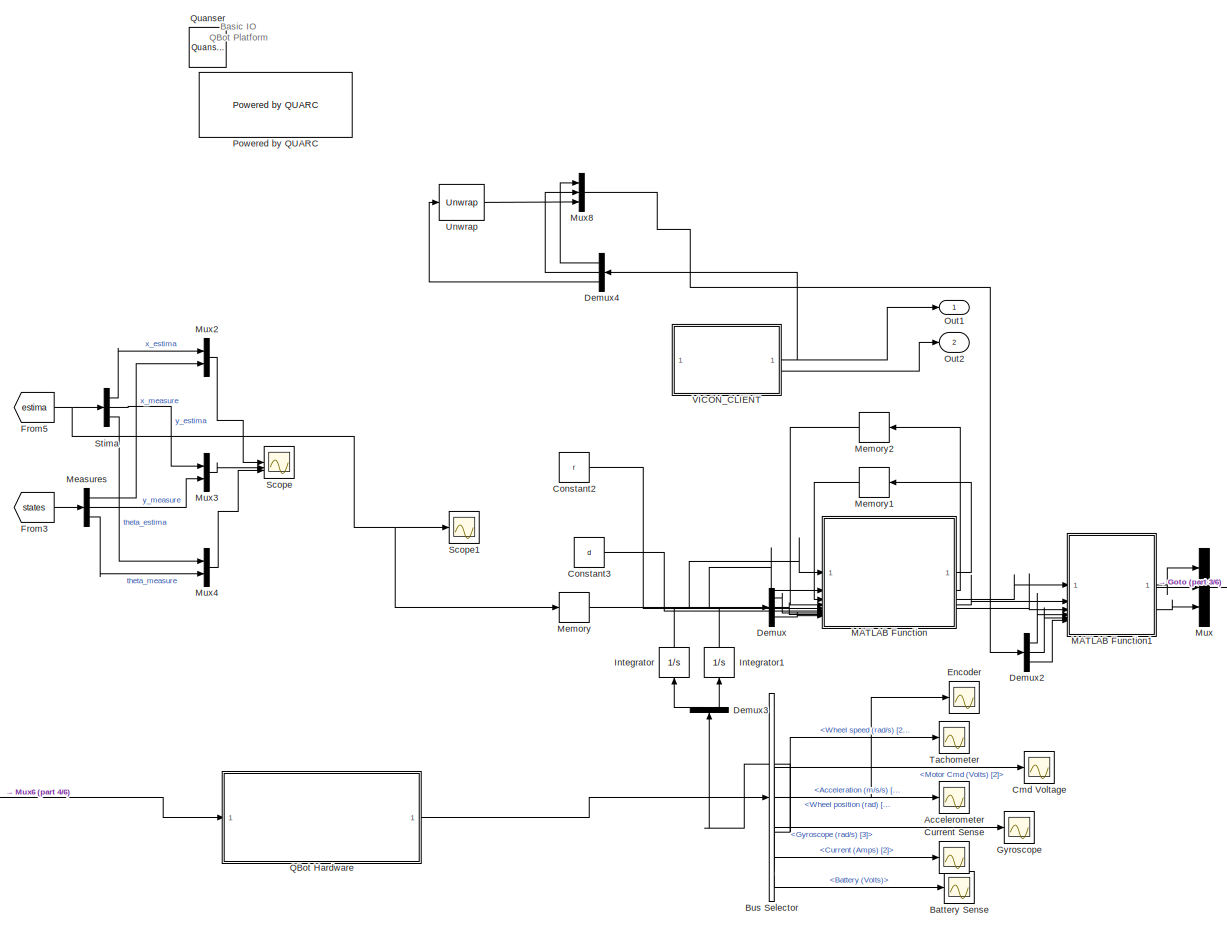
[diagram: root canvas - part 1/6, right side, full height]
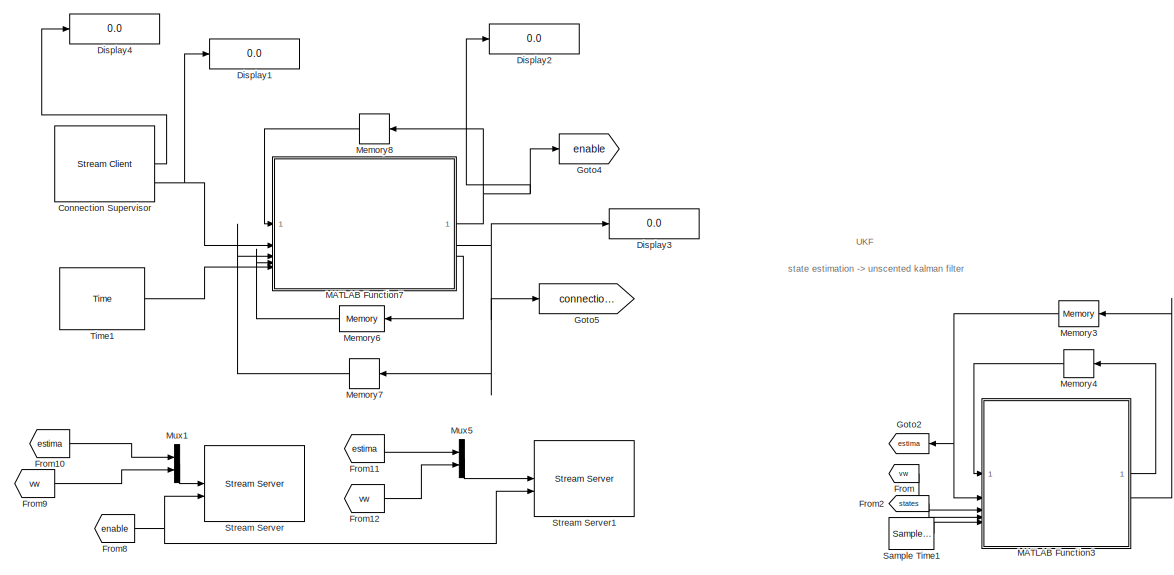
[diagram: root canvas - part 2/6, top center region]
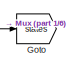
[diagram: root canvas - part 3/6, middle right region]
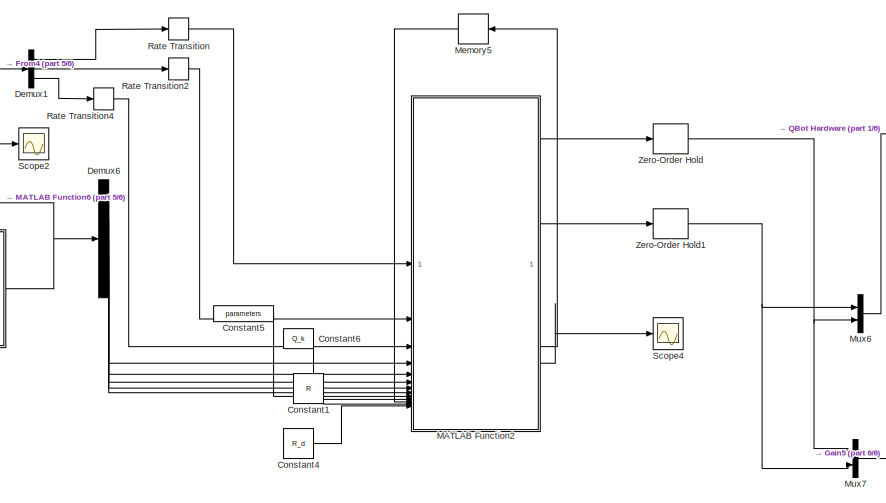
[diagram: root canvas - part 4/6, bottom center region]
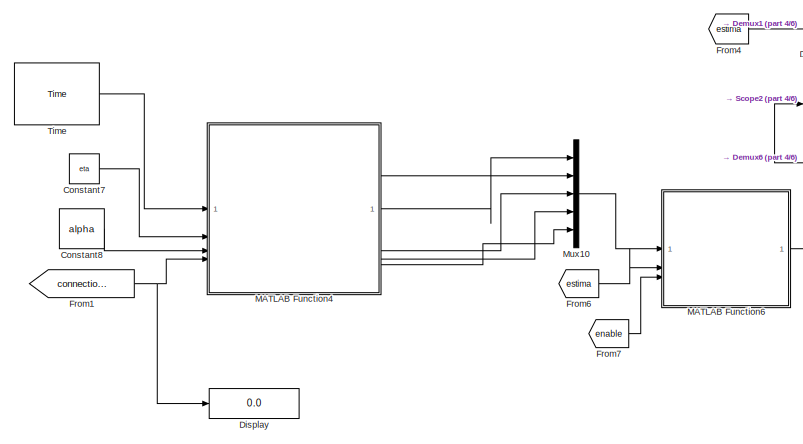
[diagram: root canvas - part 5/6, bottom left region]
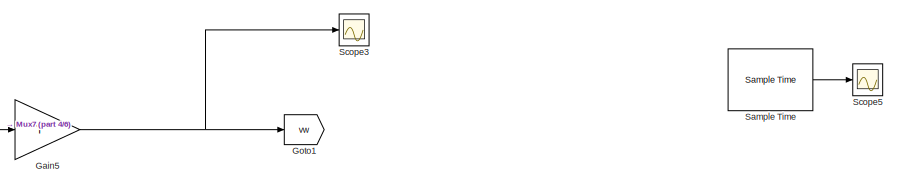
[diagram: root canvas - part 6/6, bottom center region]
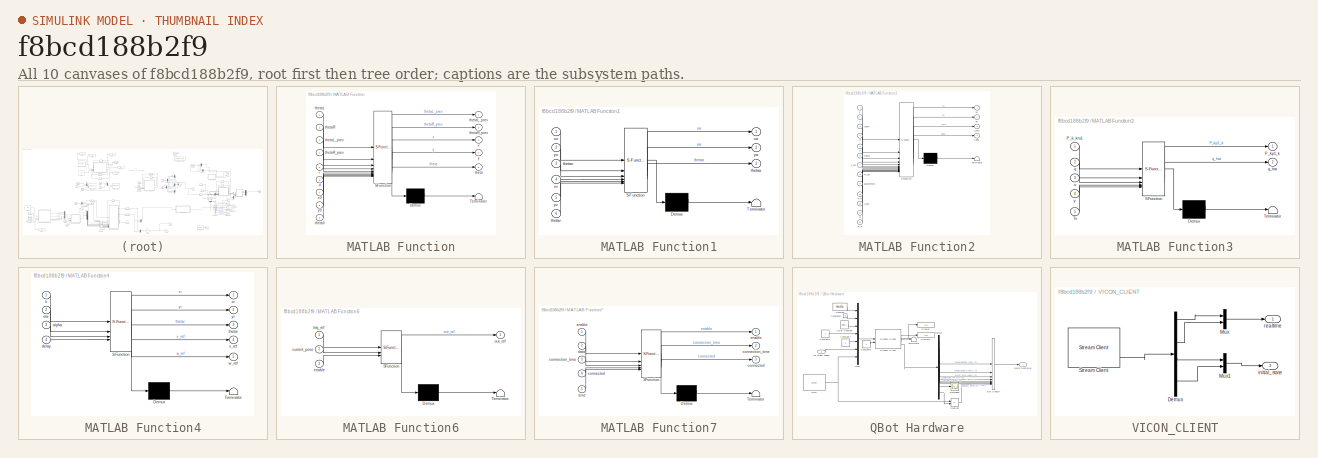
[diagram: thumbnail index - all 10 canvases of the model, root first then tree order]
MODEL slx_f8bcd188b2f9
KIND model
CONFIG AbsTol = auto
CONFIG EnableMultiTasking = on
CONFIG FixedStep = 1/30
CONFIG MaxStep = auto
CONFIG MinStep = auto
CONFIG RelTol = 1e-3
CONFIG SampleTimeConstraint = Unconstrained
CONFIG SolverName = ode1
CONFIG StartTime = 0.0
CONFIG StopTime = inf
WORKSPACE source: mxarray member
WORKSPACE Sig: Simulink.Signal (value not decoded)
WORKSPACE downCamStepSize: Simulink.Parameter (value not decoded)
WORKSPACE lidarStepSize: Simulink.Parameter (value not decoded)
WORKSPACE mainStepSize: Simulink.Parameter (value not decoded)
WORKSPACE mode: Simulink.Parameter (value not decoded)
WORKSPACE realSenseStepSize: Simulink.Parameter (value not decoded)
BLOCK [Scope] Accelerometer
  Floating = off
  NameLocation = right
  NumInputPorts = 1
  ScopeSpecificationString = Simulink.scopes.TimeScopeBlockCfg('CurrentConfiguration', extmgr.ConfigurationSet(extmgr.Configuration('Core','General UI',true),extmgr.Configuration('Core','Source UI',true),extmgr.Configuration('Sources','WiredSimulink',true,'DataLoggingVariableName','ScopeData5'),extmgr.Configuration('Visuals','Time Domain',true,'SerializedDisplays',{struct('MinYLimReal','-1.32758','MaxYLimReal','11.23','YLabel...<+1468ch>
BLOCK [Scope] Battery Sense
  Floating = off
  NameLocation = right
  NumInputPorts = 1
  ScopeSpecificationString = Simulink.scopes.TimeScopeBlockCfg('CurrentConfiguration', extmgr.ConfigurationSet(extmgr.Configuration('Core','General UI',true),extmgr.Configuration('Core','Source UI',true),extmgr.Configuration('Sources','WiredSimulink',true,'DataLoggingVariableName','ScopeData8'),extmgr.Configuration('Visuals','Time Domain',true,'SerializedDisplays',{struct('MinYLimReal','12.81161','MaxYLimReal','12.96349','YLa...<+1408ch>
BLOCK [BusSelector] Bus Selector
  OutputSignals = Wheel position (rad) [2],Wheel speed (rad/s) [2],Motor Cmd (Volts) [2],Acceleration (m/s/s) [3],Gyroscope (rad/s) [3],Current (Amps) [2],Battery (Volts)
BLOCK [Scope] Cmd Voltage
  Floating = off
  NameLocation = right
  NumInputPorts = 1
  ScopeSpecificationString = Simulink.scopes.TimeScopeBlockCfg('CurrentConfiguration', extmgr.ConfigurationSet(extmgr.Configuration('Core','General UI',true),extmgr.Configuration('Core','Source UI',true),extmgr.Configuration('Sources','WiredSimulink',true,'DataLoggingVariableName','ScopeData4'),extmgr.Configuration('Visuals','Time Domain',true,'SerializedDisplays',{struct('MinYLimReal','-1.00000','MaxYLimReal','1.00000','YLab...<+1441ch>
BLOCK [Reference] Connection Supervisor  REF=quarc_library/Communications/Basic/Stream Client
  AttributesFormatString = "tcpip://192.168.0.5:18012"
  SourceBlock = quarc_library/Communications/Basic/Stream Client
  SourceProductName = QUARC Targets
  SourceType = Stream Client
BLOCK [Constant] Constant1
  Value = R
BLOCK [Constant] Constant2
  Value = r
BLOCK [Constant] Constant3
  Value = d
BLOCK [Constant] Constant4
  Value = R_d
BLOCK [Constant] Constant5
  NameLocation = top
  Value = parameters
BLOCK [Constant] Constant6
  NameLocation = top
  Value = Q_k
BLOCK [Constant] Constant7
  Value = eta
BLOCK [Constant] Constant8
  Value = alpha
BLOCK [Scope] Current Sense
  Floating = off
  NameLocation = right
  NumInputPorts = 1
  ScopeSpecificationString = Simulink.scopes.TimeScopeBlockCfg('CurrentConfiguration', extmgr.ConfigurationSet(extmgr.Configuration('Core','General UI',true),extmgr.Configuration('Core','Source UI',true),extmgr.Configuration('Sources','WiredSimulink',true,'DataLoggingVariableName','ScopeData7'),extmgr.Configuration('Visuals','Time Domain',true,'SerializedDisplays',{struct('MinYLimReal','-0.05029','MaxYLimReal','0.45265','YLab...<+1434ch>
BLOCK [Demux] Demux
  Outputs = 3
BLOCK [Demux] Demux1
  Outputs = 3
BLOCK [Demux] Demux2
  Outputs = 3
BLOCK [Demux] Demux3
  NameLocation = right
  Outputs = 2
BLOCK [Demux] Demux4
  NameLocation = top
  Outputs = 3
BLOCK [Demux] Demux6
  Outputs = 5
BLOCK [Display] Display
  Decimation = 1
BLOCK [Display] Display1
  Decimation = 1
BLOCK [Display] Display2
  Decimation = 1
BLOCK [Display] Display3
  Decimation = 1
BLOCK [Display] Display4
  Decimation = 1
BLOCK [Scope] Encoder
  Floating = off
  NameLocation = right
  NumInputPorts = 1
  ScopeSpecificationString = Simulink.scopes.TimeScopeBlockCfg('CurrentConfiguration', extmgr.ConfigurationSet(extmgr.Configuration('Core','General UI',true),extmgr.Configuration('Core','Source UI',true),extmgr.Configuration('Sources','WiredSimulink',true,'DataLoggingVariableName','ScopeData2'),extmgr.Configuration('Visuals','Time Domain',true,'SerializedDisplays',{struct('MinYLimReal','0.28099','MaxYLimReal','183.6586','YLab...<+1499ch>
BLOCK [From] From
  GotoTag = vw
BLOCK [From] From1
  GotoTag = connection_time
BLOCK [From] From10
  GotoTag = estima
BLOCK [From] From11
  GotoTag = estima
BLOCK [From] From12
  GotoTag = vw
BLOCK [From] From2
  GotoTag = states
BLOCK [From] From3
  GotoTag = states
BLOCK [From] From4
  GotoTag = estima
  NameLocation = top
BLOCK [From] From5
  GotoTag = estima
  NameLocation = top
BLOCK [From] From6
  GotoTag = estima
BLOCK [From] From7
  GotoTag = enable
BLOCK [From] From8
  GotoTag = enable
BLOCK [From] From9
  GotoTag = vw
BLOCK [Gain] Gain5
  Gain = T
  Multiplication = Matrix(K*u)
BLOCK [Goto] Goto
  GotoTag = states
BLOCK [Goto] Goto1
  GotoTag = vw
BLOCK [Goto] Goto2
  GotoTag = estima
  NameLocation = top
BLOCK [Goto] Goto4
  GotoTag = enable
BLOCK [Goto] Goto5
  GotoTag = connection_time
BLOCK [Scope] Gyroscope
  Floating = off
  NameLocation = right
  NumInputPorts = 1
  ScopeSpecificationString = Simulink.scopes.TimeScopeBlockCfg('CurrentConfiguration', extmgr.ConfigurationSet(extmgr.Configuration('Core','General UI',true),extmgr.Configuration('Core','Source UI',true),extmgr.Configuration('Sources','WiredSimulink',true,'DataLoggingVariableName','ScopeData6'),extmgr.Configuration('Visuals','Time Domain',true,'SerializedDisplays',{struct('MinYLimReal','-0.40322','MaxYLimReal','1.99912','YLab...<+1468ch>
BLOCK [Integrator] Integrator
  NameLocation = right
BLOCK [Integrator] Integrator1
  NameLocation = right
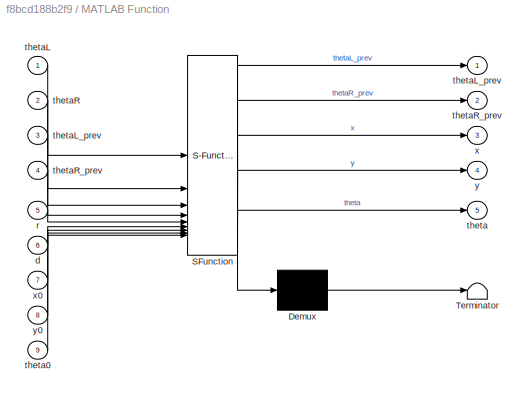
BLOCK [SubSystem] MATLAB Function
  ErrorFcn = Stateflow.Translate.translate
  PermitHierarchicalResolution = ExplicitOnly
  SFBlockType = MATLAB Function
  TreatAsAtomicUnit = on
BLOCK [Demux] MATLAB Function/ Demux 
  Outputs = 1
BLOCK [S-Function] MATLAB Function/ SFunction 
  EnableBusSupport = on
  FunctionName = sf_sfun
  PortCounts = [9 6]
  SFcnIsStateOwnerBlock = off
  SFunctionDeploymentMode = off
  Tag = Stateflow S-Function 2
BLOCK [Terminator] MATLAB Function/ Terminator 
BLOCK [Inport] MATLAB Function/d
  Port = 6
BLOCK [Inport] MATLAB Function/r
  Port = 5
BLOCK [Outport] MATLAB Function/theta
  Port = 5
BLOCK [Inport] MATLAB Function/theta0
  Port = 9
BLOCK [Inport] MATLAB Function/thetaL
BLOCK [Outport] MATLAB Function/thetaL_prev
BLOCK [Inport] MATLAB Function/thetaL_prev 
  Port = 3
BLOCK [Inport] MATLAB Function/thetaR
  Port = 2
BLOCK [Outport] MATLAB Function/thetaR_prev
  Port = 2
BLOCK [Inport] MATLAB Function/thetaR_prev 
  Port = 4
BLOCK [Outport] MATLAB Function/x
  Port = 3
BLOCK [Inport] MATLAB Function/x0
  Port = 7
BLOCK [Outport] MATLAB Function/y
  Port = 4
BLOCK [Inport] MATLAB Function/y0
  Port = 8
BLOCK [SubSystem] MATLAB Function1
  ErrorFcn = Stateflow.Translate.translate
  PermitHierarchicalResolution = ExplicitOnly
  SFBlockType = MATLAB Function
  TreatAsAtomicUnit = on
BLOCK [Demux] MATLAB Function1/ Demux 
  Outputs = 1
BLOCK [S-Function] MATLAB Function1/ SFunction 
  EnableBusSupport = on
  FunctionName = sf_sfun
  PortCounts = [6 4]
  SFcnIsStateOwnerBlock = off
  SFunctionDeploymentMode = off
  Tag = Stateflow S-Function 1
BLOCK [Terminator] MATLAB Function1/ Terminator 
BLOCK [Outport] MATLAB Function1/thetaa
  Port = 3
BLOCK [Inport] MATLAB Function1/thetao
  Port = 3
BLOCK [Inport] MATLAB Function1/thetav
  Port = 6
BLOCK [Outport] MATLAB Function1/xa
BLOCK [Inport] MATLAB Function1/xo
BLOCK [Inport] MATLAB Function1/xv
  Port = 4
BLOCK [Outport] MATLAB Function1/ya
  Port = 2
BLOCK [Inport] MATLAB Function1/yo
  Port = 2
BLOCK [Inport] MATLAB Function1/yv
  Port = 5
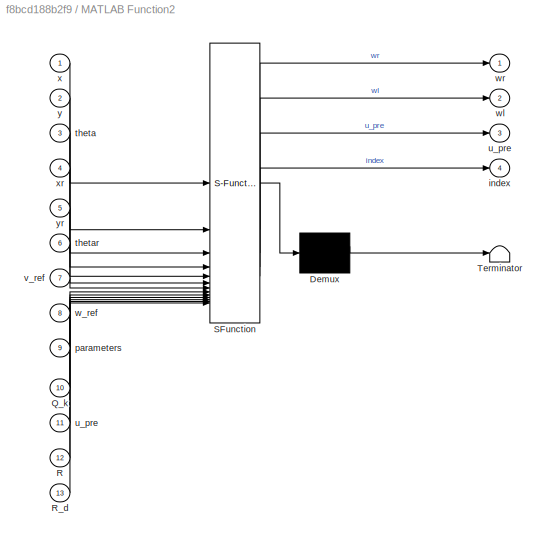
BLOCK [SubSystem] MATLAB Function2
  ErrorFcn = Stateflow.Translate.translate
  NameLocation = right
  PermitHierarchicalResolution = ExplicitOnly
  SFBlockType = MATLAB Function
  TreatAsAtomicUnit = on
BLOCK [Demux] MATLAB Function2/ Demux 
  Outputs = 1
BLOCK [S-Function] MATLAB Function2/ SFunction 
  EnableBusSupport = on
  FunctionName = sf_sfun
  PortCounts = [13 5]
  SFcnIsStateOwnerBlock = off
  SFunctionDeploymentMode = off
  Tag = Stateflow S-Function 11
BLOCK [Terminator] MATLAB Function2/ Terminator 
BLOCK [Inport] MATLAB Function2/Q_k
  Port = 10
BLOCK [Inport] MATLAB Function2/R
  Port = 12
BLOCK [Inport] MATLAB Function2/R_d
  Port = 13
BLOCK [Outport] MATLAB Function2/index
  Port = 4
BLOCK [Inport] MATLAB Function2/parameters
  Port = 9
BLOCK [Inport] MATLAB Function2/theta
  Port = 3
BLOCK [Inport] MATLAB Function2/thetar
  Port = 6
BLOCK [Outport] MATLAB Function2/u_pre
  Port = 3
BLOCK [Inport] MATLAB Function2/u_pre 
  Port = 11
BLOCK [Inport] MATLAB Function2/v_ref
  Port = 7
BLOCK [Inport] MATLAB Function2/w_ref
  Port = 8
BLOCK [Outport] MATLAB Function2/wl
  Port = 2
BLOCK [Outport] MATLAB Function2/wr
  VectorParamsAs1DForOutWhenUnconnected = off
BLOCK [Inport] MATLAB Function2/x
BLOCK [Inport] MATLAB Function2/xr
  Port = 4
BLOCK [Inport] MATLAB Function2/y
  Port = 2
BLOCK [Inport] MATLAB Function2/yr
  Port = 5
BLOCK [SubSystem] MATLAB Function3
  ErrorFcn = Stateflow.Translate.translate
  LibrarySourceBlock = simulink/User-Defined\nFunctions/MATLAB Function
  PermitHierarchicalResolution = ExplicitOnly
  SFBlockType = MATLAB Function
  TreatAsAtomicUnit = on
BLOCK [Demux] MATLAB Function3/ Demux 
  Outputs = 1
BLOCK [S-Function] MATLAB Function3/ SFunction 
  EnableBusSupport = on
  FunctionName = sf_sfun
  PortCounts = [5 3]
  SFcnIsStateOwnerBlock = off
  SFunctionDeploymentMode = off
  Tag = Stateflow S-Function 6
BLOCK [Terminator] MATLAB Function3/ Terminator 
BLOCK [Inport] MATLAB Function3/P_k_km1
BLOCK [Outport] MATLAB Function3/P_kp1_k
BLOCK [Inport] MATLAB Function3/Ts
  Port = 5
BLOCK [Inport] MATLAB Function3/q
  Port = 2
BLOCK [Outport] MATLAB Function3/q_hat
  Port = 2
BLOCK [Inport] MATLAB Function3/u
  Port = 3
BLOCK [Inport] MATLAB Function3/y
  Port = 4
BLOCK [SubSystem] MATLAB Function4
  ErrorFcn = Stateflow.Translate.translate
  LibrarySourceBlock = simulink/User-Defined\nFunctions/MATLAB Function
  PermitHierarchicalResolution = ExplicitOnly
  SFBlockType = MATLAB Function
  TreatAsAtomicUnit = on
BLOCK [Demux] MATLAB Function4/ Demux 
  Outputs = 1
BLOCK [S-Function] MATLAB Function4/ SFunction 
  EnableBusSupport = on
  FunctionName = sf_sfun
  PortCounts = [4 6]
  SFcnIsStateOwnerBlock = off
  SFunctionDeploymentMode = off
  Tag = Stateflow S-Function 3
BLOCK [Terminator] MATLAB Function4/ Terminator 
BLOCK [Inport] MATLAB Function4/alpha
  Port = 3
BLOCK [Inport] MATLAB Function4/delay
  Port = 4
BLOCK [Inport] MATLAB Function4/eta
  Port = 2
BLOCK [Inport] MATLAB Function4/k
BLOCK [Outport] MATLAB Function4/thetar
  Port = 3
BLOCK [Outport] MATLAB Function4/v_ref
  Port = 4
BLOCK [Outport] MATLAB Function4/w_ref
  Port = 5
BLOCK [Outport] MATLAB Function4/xr
BLOCK [Outport] MATLAB Function4/yr
  Port = 2
BLOCK [SubSystem] MATLAB Function6
  ErrorFcn = Stateflow.Translate.translate
  LibrarySourceBlock = simulink/User-Defined\nFunctions/MATLAB Function
  PermitHierarchicalResolution = ExplicitOnly
  SFBlockType = MATLAB Function
  TreatAsAtomicUnit = on
BLOCK [Demux] MATLAB Function6/ Demux 
  Outputs = 1
BLOCK [S-Function] MATLAB Function6/ SFunction 
  EnableBusSupport = on
  FunctionName = sf_sfun
  PortCounts = [3 2]
  SFcnIsStateOwnerBlock = off
  SFunctionDeploymentMode = off
  Tag = Stateflow S-Function 5
BLOCK [Terminator] MATLAB Function6/ Terminator 
BLOCK [Inport] MATLAB Function6/current_pose
  Port = 2
BLOCK [Inport] MATLAB Function6/enable
  Port = 3
BLOCK [Outport] MATLAB Function6/out_ref
BLOCK [Inport] MATLAB Function6/traj_ref
BLOCK [SubSystem] MATLAB Function7
  ErrorFcn = Stateflow.Translate.translate
  LibrarySourceBlock = simulink/User-Defined\nFunctions/MATLAB Function
  PermitHierarchicalResolution = ExplicitOnly
  SFBlockType = MATLAB Function
  TreatAsAtomicUnit = on
BLOCK [Demux] MATLAB Function7/ Demux 
  Outputs = 1
BLOCK [S-Function] MATLAB Function7/ SFunction 
  EnableBusSupport = on
  FunctionName = sf_sfun
  PortCounts = [5 4]
  SFcnIsStateOwnerBlock = off
  SFunctionDeploymentMode = off
  Tag = Stateflow S-Function 7
BLOCK [Terminator] MATLAB Function7/ Terminator 
BLOCK [Outport] MATLAB Function7/connected
  Port = 3
BLOCK [Inport] MATLAB Function7/connected 
  Port = 4
BLOCK [Outport] MATLAB Function7/connection_time
  Port = 2
BLOCK [Inport] MATLAB Function7/connection_time 
  Port = 3
BLOCK [Inport] MATLAB Function7/data
  Port = 2
BLOCK [Outport] MATLAB Function7/enable
BLOCK [Inport] MATLAB Function7/enable 
BLOCK [Inport] MATLAB Function7/time
  Port = 5
BLOCK [Demux] Measures
  Outputs = 3
BLOCK [Memory] Memory
  InitialCondition = X0
BLOCK [Memory] Memory1
  NameLocation = top
BLOCK [Memory] Memory2
  NameLocation = top
BLOCK [Memory] Memory3
  InheritSampleTime = on
  InitialCondition = X0
  NameLocation = top
BLOCK [Memory] Memory4
  InheritSampleTime = on
  InitialCondition = 1e-3*eye(3)
  NameLocation = top
BLOCK [Memory] Memory5
  InitialCondition = u_pre
  NameLocation = top
BLOCK [Memory] Memory6
  NameLocation = top
BLOCK [Memory] Memory7
  NameLocation = top
BLOCK [Memory] Memory8
  NameLocation = top
BLOCK [Mux] Mux
  DisplayOption = bar
  Inputs = 3
BLOCK [Mux] Mux1
  DisplayOption = bar
  Inputs = 2
BLOCK [Mux] Mux10
  DisplayOption = bar
  Inputs = 5
BLOCK [Mux] Mux2
  DisplayOption = bar
  Inputs = 2
BLOCK [Mux] Mux3
  DisplayOption = bar
  Inputs = 2
BLOCK [Mux] Mux4
  DisplayOption = bar
  Inputs = 2
BLOCK [Mux] Mux5
  DisplayOption = bar
  Inputs = 2
BLOCK [Mux] Mux6
  DisplayOption = bar
  Inputs = 2
BLOCK [Mux] Mux7
  DisplayOption = bar
  Inputs = 2
BLOCK [Mux] Mux8
  DisplayOption = bar
  Inputs = 3
BLOCK [Outport] Out1
BLOCK [Outport] Out2
  Port = 2
BLOCK [Reference] Powered by QUARC  REF=quarc_library/Logos/Powered by QUARC
  SourceBlock = quarc_library/Logos/Powered by QUARC
  SourceProductName = QUARC Targets
  SourceType = Powered by QUARC
BLOCK [SubSystem] QBot Hardware
BLOCK [BusCreator] QBot Hardware/Bus Creator
  DisplayOption = bar
  InheritFromInputs = on
  Inputs = 8
BLOCK [Reference] QBot Hardware/Color Constant  REF=quarc_library/Sources/Signals/Color Constant
  SourceBlock = quarc_library/Sources/Signals/Color Constant
  SourceProductName = QUARC Targets
  SourceType = Color Constant
BLOCK [Constant] QBot Hardware/Constant
  Value = mode
BLOCK [Constant] QBot Hardware/Constant1
  Value = 0
BLOCK [Constant] QBot Hardware/Constant2
  Value = 0
BLOCK [Constant] QBot Hardware/Constant3
BLOCK [Constant] QBot Hardware/Constant6
BLOCK [Demux] QBot Hardware/Demux
  Outputs = [2 2 2 3 3 2 1 1 1]
BLOCK [Display] QBot Hardware/Display
  Decimation = 1
BLOCK [Display] QBot Hardware/Display1
  Decimation = 1
BLOCK [Mux] QBot Hardware/Mux1
  DisplayOption = bar
  Inputs = 7
BLOCK [Outport] QBot Hardware/QBot Data Bus
BLOCK [Reference] QBot Hardware/Stream Client  REF=quarc_library/Communications/Basic/Stream Client
  AttributesFormatString = "tcpip://localhost:18888"
  SourceBlock = quarc_library/Communications/Basic/Stream Client
  SourceProductName = QUARC Targets
  SourceType = Stream Client
BLOCK [Sum] QBot Hardware/Subtract
  IconShape = rectangular
  Inputs = +-
BLOCK [Terminator] QBot Hardware/Terminator
BLOCK [Reference] QBot Hardware/Time  REF=quarc_library/Sources/Time/Time
  SourceBlock = quarc_library/Sources/Time/Time
  SourceProductName = QUARC Targets
  SourceType = Time
BLOCK [Inport] QBot Hardware/rsc wheel speed
BLOCK [Scope] QBot Hardware/watchdog
  Floating = off
  NumInputPorts = 1
  ScopeSpecificationString = Simulink.scopes.TimeScopeBlockCfg('CurrentConfiguration', extmgr.ConfigurationSet(extmgr.Configuration('Core','General UI',true),extmgr.Configuration('Core','Source UI',true),extmgr.Configuration('Sources','WiredSimulink',true,'DataLoggingVariableName','ScopeData1'),extmgr.Configuration('Visuals','Time Domain',true),extmgr.Configuration('Tools','Plot Navigation',true),extmgr.Configuration('Tools',...<+40ch>
BLOCK [Reference] Quanser  REF=quarc_library/Logos/Quanser
  SourceBlock = quarc_library/Logos/Quanser
  SourceProductName = QUARC Targets
  SourceType = Powered by Quanser
BLOCK [RateTransition] Rate Transition
  OutPortSampleTime = Ts
BLOCK [RateTransition] Rate Transition2
  OutPortSampleTime = Ts
BLOCK [RateTransition] Rate Transition4
  OutPortSampleTime = Ts
BLOCK [Reference] Sample Time  REF=quarc_library/Sources/Time/Sample Time
  Priority = -99
  SourceBlock = quarc_library/Sources/Time/Sample Time
  SourceProductName = QUARC Targets
  SourceType = Sample Time
BLOCK [Reference] Sample Time1  REF=quarc_library/Sources/Time/Sample Time
  Priority = -99
  SourceBlock = quarc_library/Sources/Time/Sample Time
  SourceProductName = QUARC Targets
  SourceType = Sample Time
BLOCK [Scope] Scope
  Floating = off
  NumInputPorts = 3
  ScopeSpecificationString = Simulink.scopes.TimeScopeBlockCfg('CurrentConfiguration', extmgr.ConfigurationSet(extmgr.Configuration('Core','General UI',true,'FigureColor',[1 1 1]),extmgr.Configuration('Core','Source UI',true),extmgr.Configuration('Sources','WiredSimulink',true,'DataLoggingVariableName','ScopeData1'),extmgr.Configuration('Visuals','Time Domain',true,'SerializedDisplays',{struct('MinYLimReal','-1.89287','MaxYLi...<+3396ch>
BLOCK [Scope] Scope1
  Floating = off
  NumInputPorts = 1
  ScopeSpecificationString = Simulink.scopes.TimeScopeBlockCfg('CurrentConfiguration', extmgr.ConfigurationSet(extmgr.Configuration('Core','General UI',true),extmgr.Configuration('Core','Source UI',true),extmgr.Configuration('Sources','WiredSimulink',true,'DataLoggingVariableName','ScopeData1'),extmgr.Configuration('Visuals','Time Domain',true),extmgr.Configuration('Tools','Plot Navigation',true),extmgr.Configuration('Tools',...<+40ch>
BLOCK [Scope] Scope2
  Floating = off
  NumInputPorts = 1
  ScopeSpecificationString = Simulink.scopes.TimeScopeBlockCfg('CurrentConfiguration', extmgr.ConfigurationSet(extmgr.Configuration('Core','General UI',true),extmgr.Configuration('Core','Source UI',true),extmgr.Configuration('Sources','WiredSimulink',true,'DataLoggingVariableName','ScopeData1'),extmgr.Configuration('Visuals','Time Domain',true,'SerializedDisplays',{struct('MinYLimReal','-1.85654','MaxYLimReal','1.8307','YLabe...<+1531ch>
BLOCK [Scope] Scope3
  Floating = off
  NumInputPorts = 1
  ScopeSpecificationString = Simulink.scopes.TimeScopeBlockCfg('CurrentConfiguration', extmgr.ConfigurationSet(extmgr.Configuration('Core','General UI',true),extmgr.Configuration('Core','Source UI',true),extmgr.Configuration('Sources','WiredSimulink',true,'DataLoggingVariableName','ScopeData2'),extmgr.Configuration('Visuals','Time Domain',true,'SerializedDisplays',{struct('MinYLimReal','-0.09076','MaxYLimReal','0.50397','YLab...<+1431ch>
BLOCK [Scope] Scope4
  Floating = off
  NumInputPorts = 1
  ScopeSpecificationString = Simulink.scopes.TimeScopeBlockCfg('CurrentConfiguration', extmgr.ConfigurationSet(extmgr.Configuration('Core','General UI',true),extmgr.Configuration('Core','Source UI',true),extmgr.Configuration('Sources','WiredSimulink',true,'DataLoggingVariableName','ScopeData1'),extmgr.Configuration('Visuals','Time Domain',true,'SerializedDisplays',{struct('MinYLimReal','114.73595','MaxYLimReal','3283.75','YLa...<+1431ch>
BLOCK [Scope] Scope5
  Floating = off
  NumInputPorts = 1
  ScopeSpecificationString = Simulink.scopes.TimeScopeBlockCfg('CurrentConfiguration', extmgr.ConfigurationSet(extmgr.Configuration('Core','General UI',true),extmgr.Configuration('Core','Source UI',true),extmgr.Configuration('Sources','WiredSimulink',true,'DataLoggingVariableName','ScopeData1'),extmgr.Configuration('Visuals','Time Domain',true,'SerializedDisplays',{struct('MinYLimReal','0.00784','MaxYLimReal','0.01736','YLabe...<+1412ch>
BLOCK [Demux] Stima
  Outputs = 3
BLOCK [Reference] Stream Server  REF=quarc_library/Communications/Basic/Stream Server
  AttributesFormatString = "tcpip://192.168.0.230:18010"
  SourceBlock = quarc_library/Communications/Basic/Stream Server
  SourceProductName = QUARC Targets
  SourceType = Stream Server
BLOCK [Reference] Stream Server1  REF=quarc_library/Communications/Basic/Stream Server
  AttributesFormatString = "tcpip://192.1687.0.230:18011"
  SourceBlock = quarc_library/Communications/Basic/Stream Server
  SourceProductName = QUARC Targets
  SourceType = Stream Server
BLOCK [Scope] Tachometer
  Floating = off
  NameLocation = right
  NumInputPorts = 1
  ScopeSpecificationString = Simulink.scopes.TimeScopeBlockCfg('CurrentConfiguration', extmgr.ConfigurationSet(extmgr.Configuration('Core','General UI',true),extmgr.Configuration('Core','Source UI',true),extmgr.Configuration('Sources','WiredSimulink',true,'DataLoggingVariableName','ScopeData3'),extmgr.Configuration('Visuals','Time Domain',true,'SerializedDisplays',{struct('MinYLimReal','-1.00000','MaxYLimReal','13.60362','YLa...<+1440ch>
BLOCK [Reference] Time  REF=quarc_library/Sources/Time/Time
  SourceBlock = quarc_library/Sources/Time/Time
  SourceProductName = QUARC Targets
  SourceType = Time
BLOCK [Reference] Time1  REF=quarc_library/Sources/Time/Time
  SourceBlock = quarc_library/Sources/Time/Time
  SourceProductName = QUARC Targets
  SourceType = Time
BLOCK [Reference] Unwrap  REF=dspsigops/Unwrap
  SourceBlock = dspsigops/Unwrap
  SourceType = Unwrap
  UserDataPersistent = on
BLOCK [SubSystem] VICON_CLIENT
BLOCK [Demux] VICON_CLIENT/Demux
  Outputs = [2 1 2 1 1 2 1 2 1 1]
BLOCK [Mux] VICON_CLIENT/Mux
  DisplayOption = bar
  Inputs = 2
BLOCK [Mux] VICON_CLIENT/Mux1
  DisplayOption = bar
  Inputs = 2
BLOCK [Reference] VICON_CLIENT/Stream Client  REF=quarc_library/Communications/Basic/Stream Client
  AttributesFormatString = "tcpip://192.168.0.5:18100"
  SourceBlock = quarc_library/Communications/Basic/Stream Client
  SourceProductName = QUARC Targets
  SourceType = Stream Client
BLOCK [Outport] VICON_CLIENT/initial_state
  Port = 2
BLOCK [Outport] VICON_CLIENT/realtime
BLOCK [ZeroOrderHold] Zero-Order Hold
  NameLocation = top
  SampleTime = Ts
BLOCK [ZeroOrderHold] Zero-Order Hold1
  NameLocation = top
  SampleTime = Ts
ANNOTATION (root): Basic IO QBot Platform
ANNOTATION (root): UKF
ANNOTATION (root): state estimation -> unscented kalman filter
LINE Bus Selector:1 -> Encoder:1
NET Bus Selector:2 -> Demux3:1, Tachometer:1
LINE Bus Selector:3 -> Cmd Voltage:1
LINE Bus Selector:4 -> Accelerometer:1
LINE Bus Selector:5 -> Gyroscope:1
LINE Bus Selector:6 -> Current Sense:1
LINE Bus Selector:7 -> Battery Sense:1
LINE Connection Supervisor:1 -> Display4:1
NET Connection Supervisor:3 -> Display1:1, MATLAB Function7:2
LINE Constant1:1 -> MATLAB Function2:12
LINE Constant2:1 -> MATLAB Function:5
LINE Constant3:1 -> MATLAB Function:6
LINE Constant4:1 -> MATLAB Function2:13
LINE Constant5:1 -> MATLAB Function2:9
LINE Constant6:1 -> MATLAB Function2:10
LINE Constant7:1 -> MATLAB Function4:2
LINE Constant8:1 -> MATLAB Function4:3
LINE Demux1:1 -> Rate Transition:1
LINE Demux1:2 -> Rate Transition2:1
LINE Demux1:3 -> Rate Transition4:1
LINE Demux2:1 -> MATLAB Function1:4
LINE Demux2:2 -> MATLAB Function1:5
LINE Demux2:3 -> MATLAB Function1:6
LINE Demux3:1 -> Integrator:1
LINE Demux3:2 -> Integrator1:1
LINE Demux4:1 -> Mux8:1
LINE Demux4:2 -> Mux8:2
LINE Demux4:3 -> Unwrap:1
LINE Demux6:1 -> MATLAB Function2:4
LINE Demux6:2 -> MATLAB Function2:5
LINE Demux6:3 -> MATLAB Function2:6
LINE Demux6:4 -> MATLAB Function2:7
LINE Demux6:5 -> MATLAB Function2:8
LINE Demux:1 -> MATLAB Function:7
LINE Demux:2 -> MATLAB Function:8
LINE Demux:3 -> MATLAB Function:9
LINE From10:1 -> Mux1:1
LINE From11:1 -> Mux5:1
LINE From12:1 -> Mux5:2
NET From1:1 -> Display:1, MATLAB Function4:4
LINE From2:1 -> MATLAB Function3:4
LINE From3:1 -> Measures:1
LINE From4:1 -> Demux1:1
NET From5:1 -> Memory:1, Scope1:1, Stima:1
LINE From6:1 -> MATLAB Function6:2
LINE From7:1 -> MATLAB Function6:3
NET From8:1 -> Stream Server1:2, Stream Server:2
LINE From9:1 -> Mux1:2
LINE From:1 -> MATLAB Function3:3
NET Gain5:1 -> Goto1:1, Scope3:1
LINE Integrator1:1 -> MATLAB Function:2
LINE Integrator:1 -> MATLAB Function:1
LINE MATLAB Function1:1 -> Mux:1
LINE MATLAB Function1:2 -> Mux:2
LINE MATLAB Function1:3 -> Mux:3
LINE MATLAB Function2:1 -> Zero-Order Hold:1
LINE MATLAB Function2:2 -> Zero-Order Hold1:1
LINE MATLAB Function2:3 -> Memory5:1
LINE MATLAB Function2:4 -> Scope4:1
LINE MATLAB Function3:1 -> Memory4:1
LINE MATLAB Function3:2 -> Memory3:1
LINE MATLAB Function4:1 -> Mux10:1
LINE MATLAB Function4:2 -> Mux10:2
LINE MATLAB Function4:3 -> Mux10:3
LINE MATLAB Function4:4 -> Mux10:4
LINE MATLAB Function4:5 -> Mux10:5
NET MATLAB Function6:1 -> Demux6:1, Scope2:1
NET MATLAB Function7:1 -> Display2:1, Goto4:1, Memory8:1
NET MATLAB Function7:2 -> Display3:1, Goto5:1, Memory7:1
LINE MATLAB Function7:3 -> Memory6:1
LINE MATLAB Function:1 -> Memory1:1
LINE MATLAB Function:2 -> Memory2:1
LINE MATLAB Function:3 -> MATLAB Function1:1
LINE MATLAB Function:4 -> MATLAB Function1:2
LINE MATLAB Function:5 -> MATLAB Function1:3
LINE Measures:1 -> Mux2:2
LINE Measures:2 -> Mux3:2
LINE Measures:3 -> Mux4:2
LINE Memory1:1 -> MATLAB Function:3
LINE Memory2:1 -> MATLAB Function:4
NET Memory3:1 -> Goto2:1, MATLAB Function3:2
LINE Memory4:1 -> MATLAB Function3:1
LINE Memory5:1 -> MATLAB Function2:11
LINE Memory6:1 -> MATLAB Function7:4
LINE Memory7:1 -> MATLAB Function7:3
LINE Memory8:1 -> MATLAB Function7:1
LINE Memory:1 -> Demux:1
LINE Mux10:1 -> MATLAB Function6:1
LINE Mux1:1 -> Stream Server:1
LINE Mux2:1 -> Scope:1
LINE Mux3:1 -> Scope:2
LINE Mux4:1 -> Scope:3
LINE Mux5:1 -> Stream Server1:1
LINE Mux6:1 -> QBot Hardware:1
LINE Mux7:1 -> Gain5:1
LINE Mux8:1 -> Demux2:1
LINE Mux:1 -> Goto:1
LINE QBot Hardware/Bus Creator:1 -> QBot Hardware/QBot Data Bus:1
LINE QBot Hardware/Color Constant:1 -> QBot Hardware/Mux1:3
LINE QBot Hardware/Constant1:1 -> QBot Hardware/Mux1:2
LINE QBot Hardware/Constant2:1 -> QBot Hardware/Mux1:5
LINE QBot Hardware/Constant3:1 -> QBot Hardware/Mux1:4
LINE QBot Hardware/Constant6:1 -> QBot Hardware/Stream Client:2
LINE QBot Hardware/Constant:1 -> QBot Hardware/Mux1:1
LINE QBot Hardware/Demux:1 -> QBot Hardware/Bus Creator:1
LINE QBot Hardware/Demux:2 -> QBot Hardware/Bus Creator:2
LINE QBot Hardware/Demux:3 -> QBot Hardware/Bus Creator:3
LINE QBot Hardware/Demux:4 -> QBot Hardware/Bus Creator:4
LINE QBot Hardware/Demux:5 -> QBot Hardware/Bus Creator:5
LINE QBot Hardware/Demux:6 -> QBot Hardware/Bus Creator:6
LINE QBot Hardware/Demux:7 -> QBot Hardware/Bus Creator:7
LINE QBot Hardware/Demux:8 -> QBot Hardware/watchdog:1
LINE QBot Hardware/Demux:9 -> QBot Hardware/Subtract:2
LINE QBot Hardware/Mux1:1 -> QBot Hardware/Stream Client:1
LINE QBot Hardware/Stream Client:1 -> QBot Hardware/Display:1
LINE QBot Hardware/Stream Client:2 -> QBot Hardware/Display1:1
LINE QBot Hardware/Stream Client:3 -> QBot Hardware/Terminator:1
LINE QBot Hardware/Stream Client:4 -> QBot Hardware/Demux:1
LINE QBot Hardware/Subtract:1 -> QBot Hardware/Bus Creator:8
NET QBot Hardware/Time:1 -> QBot Hardware/Mux1:7, QBot Hardware/Subtract:1
LINE QBot Hardware/rsc wheel speed:1 -> QBot Hardware/Mux1:6
LINE QBot Hardware:1 -> Bus Selector:1
LINE Rate Transition2:1 -> MATLAB Function2:2
LINE Rate Transition4:1 -> MATLAB Function2:3
LINE Rate Transition:1 -> MATLAB Function2:1
LINE Sample Time1:1 -> MATLAB Function3:5
LINE Sample Time:1 -> Scope5:1
LINE Stima:1 -> Mux2:1
LINE Stima:2 -> Mux3:1
LINE Stima:3 -> Mux4:1
LINE Time1:1 -> MATLAB Function7:5
LINE Time:1 -> MATLAB Function4:1
LINE Unwrap:1 -> Mux8:3
LINE VICON_CLIENT/Demux:1 -> VICON_CLIENT/Mux:1
LINE VICON_CLIENT/Demux:4 -> VICON_CLIENT/Mux:2
LINE VICON_CLIENT/Demux:6 -> VICON_CLIENT/Mux1:1
LINE VICON_CLIENT/Demux:9 -> VICON_CLIENT/Mux1:2
LINE VICON_CLIENT/Mux1:1 -> VICON_CLIENT/initial_state:1
LINE VICON_CLIENT/Mux:1 -> VICON_CLIENT/realtime:1
LINE VICON_CLIENT/Stream Client:3 -> VICON_CLIENT/Demux:1
NET VICON_CLIENT:1 -> Demux4:1, Out1:1
LINE VICON_CLIENT:2 -> Out2:1
NET Zero-Order Hold1:1 -> Mux6:1, Mux7:2
NET Zero-Order Hold:1 -> Mux6:2, Mux7:1
note: NET lines group one-source signal fan-out (src -> all destinations, sorted); 1:1 wires keep LINE
CHART MATLAB Function2 states=1 transitions=1
  STATE_LABEL 'eML_blk_kernel()'
  STATE_LABEL 'SCRIPT:\nfunction [wr, wl, u_pre,index] = fcn(x,y,theta,xr,yr,thetar,v_ref,w_ref, parameters, Q_k,u_pre, R,R_d)\n\nr=parameters(1);        % radius od wheels [m]\nd=parameters(2);      % distance between the two wheels [m]\nwrlmax=parameters(3);   % max angular velocity [rad/s] \nTs=parameters(4);      % sampling time [s]\nb=parameters(5);         % distance point b [m]\n\n\nT=[[r/2 r/2];[r/d -r/d]];\nT_inv=...<+2736ch>'
CHART MATLAB Function1 states=1 transitions=1
  STATE_LABEL 'eML_blk_kernel()'
  STATE_LABEL 'SCRIPT:\nfunction [xa,ya,thetaa] = fcn(xo,yo,thetao,xv,yv,thetav)\n% a - average\n% v- vicon_data\n% o - odometry\n mo = 40;\n mv = 60;\n\nxa = (mo*xo+mv*xv)/100;\nya = (mo*yo+mv*yv)/100;\nthetaa = (mo*thetao+mv*thetav)/100;\n\n'
CHART MATLAB Function states=1 transitions=1
  STATE_LABEL 'eML_blk_kernel()'
  STATE_LABEL 'SCRIPT:\nfunction [thetaL_prev, thetaR_prev,x,y,theta]=computeOdometry(thetaL,thetaR,thetaL_prev, thetaR_prev,r,d,x0,y0,theta0)\n    delta_sL=r*(thetaL - thetaL_prev);\n    delta_sR=r*(thetaR - thetaR_prev);\n    delta_theta=(delta_sR-delta_sL)/d;\n    delta_s=(delta_sR+delta_sL)/2;\n    theta=theta0+delta_theta/2;\n    x=x0+delta_s*cos(theta);\n    y=y0+delta_s*sin(theta); \n    thetaL_prev = thetaL;\n    ...<+26ch>'
CHART MATLAB Function4 states=1 transitions=1
  STATE_LABEL 'eML_blk_kernel()'
  STATE_LABEL 'SCRIPT:\nfunction [xr,yr,thetar,v_ref,w_ref] = eight_shaped_traj(k,eta,alpha,delay)\n\n\nxr=eta*sin((k-delay)/alpha);\nyr=eta*sin((k-delay)/(2*alpha));\n\n%Velocity trajectory\nxpr=eta*cos((k-delay)/alpha)*(1/alpha);\nypr=eta*cos((k-delay)/(2*alpha))*(1/(2*alpha));\n\n%Acceleration trajectory\nxppr=-eta*sin((k-delay)/alpha)*(1/alpha)*(1/alpha);\nyppr=-eta*sin((k-delay)/(2*alpha))*(1/(2*alpha))*(1/(2*alpha));\n\n...<+159ch>'
CHART MATLAB Function6 states=1 transitions=1
  STATE_LABEL 'eML_blk_kernel()'
  STATE_LABEL 'SCRIPT:\nfunction out_ref = fcn(traj_ref,current_pose,enable)\n\n\nif enable == 1\n    out_ref=traj_ref;\nelse\n    out_ref=[current_pose;0;0];\nend\n\n\n'
CHART MATLAB Function3 states=1 transitions=1
  STATE_LABEL 'eML_blk_kernel()'
  STATE_LABEL 'SCRIPT:\nfunction [P_kp1_k,q_hat]= my_unscented_kalman_filter(P_k_km1,q,u,y,Ts)\nQ=1e-7*eye(3);\nR=1e-3*eye(3);\nalpha=0.9; beta=2; kappa=0;\n%Calculate the Sigma points\nM=3;\nc=alpha^2*(M+kappa);\nq_hat_i=zeros(M,2*M+1);\nq_hat_i(:,1)=q;\nDelta_x=real(sqrtm(c*P_k_km1));\nfor i=1:M\n    q_hat_i(:,i+1)=q+Delta_x(:,i);\n    q_hat_i(:,i+1+M)=q-Delta_x(:,i);\nend\n%Output of the sigma points\ny_hat_i=q_hat_i(1:3,:);...<+1419ch>'
CHART MATLAB Function7 states=1 transitions=1
  STATE_LABEL 'eML_blk_kernel()'
  STATE_LABEL 'SCRIPT:\nfunction [enable,connection_time,connected] = resetconnection( enable,data,connection_time,connected, time)\n\n\nif connected == 0\n    connection_time = time;\n    if data ==1\n        connected = 1;\n        enable = 1 ;\n    end\nend\n\n\n\n'
CHART  states=0 transitions=0
CHART  states=0 transitions=0
CHART  states=0 transitions=0
CHART  states=0 transitions=0
CHART  states=0 transitions=0
CHART  states=0 transitions=0
CHART  states=0 transitions=0
